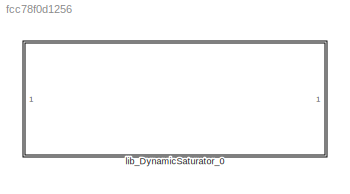
MODEL slx_fcc78f0d1256
KIND library
CONFIG AbsTol = auto
CONFIG EnableMultiTasking = off
CONFIG FixedStep = auto
CONFIG MaxStep = auto
CONFIG MinStep = auto
CONFIG RelTol = 1e-3
CONFIG SampleTimeConstraint = Unconstrained
CONFIG SolverName = VariableStepAuto
CONFIG StartTime = 0.0
CONFIG StopTime = 10.0
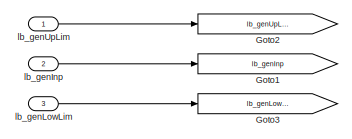
[diagram: lib_DynamicSaturator_0 - part 1/3, top left region]
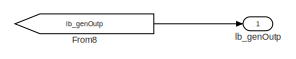
[diagram: lib_DynamicSaturator_0 - part 2/3, top right region]
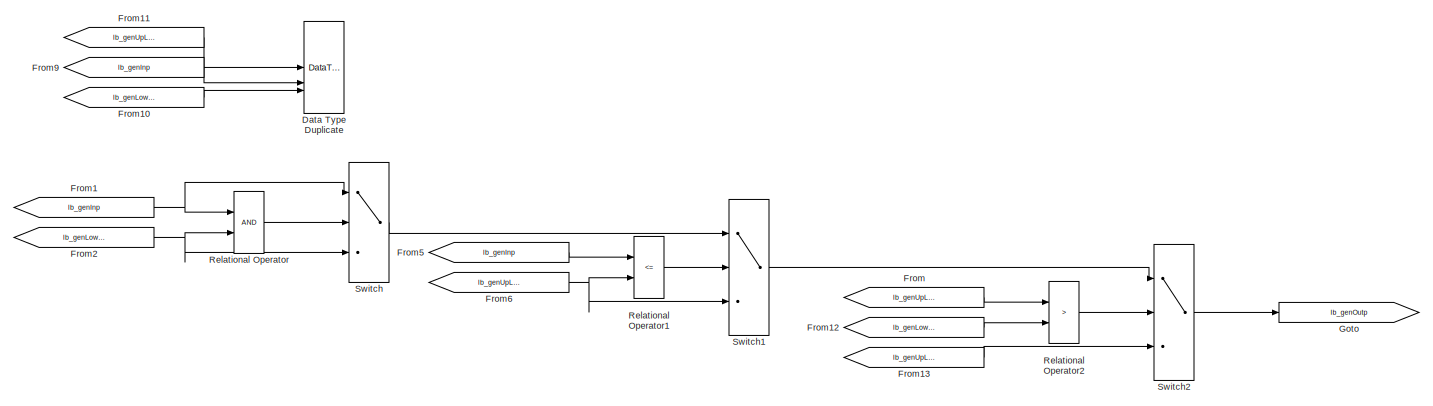
[diagram: lib_DynamicSaturator_0 - part 3/3, center side, full height]
BLOCK [SubSystem] lib_DynamicSaturator_0
BLOCK [DataTypeDuplicate] lib_DynamicSaturator_0/Data Type Duplicate
  NumInputPorts = 3
BLOCK [From] lib_DynamicSaturator_0/From
  GotoTag = lb_genUpLim
BLOCK [From] lib_DynamicSaturator_0/From1
  GotoTag = lb_genInp
BLOCK [From] lib_DynamicSaturator_0/From10
  GotoTag = lb_genLowLim
BLOCK [From] lib_DynamicSaturator_0/From11
  GotoTag = lb_genUpLim
BLOCK [From] lib_DynamicSaturator_0/From12
  GotoTag = lb_genLowLim
BLOCK [From] lib_DynamicSaturator_0/From13
  GotoTag = lb_genUpLim
BLOCK [From] lib_DynamicSaturator_0/From2
  GotoTag = lb_genLowLim
BLOCK [From] lib_DynamicSaturator_0/From5
  GotoTag = lb_genInp
BLOCK [From] lib_DynamicSaturator_0/From6
  GotoTag = lb_genUpLim
BLOCK [From] lib_DynamicSaturator_0/From8
  GotoTag = lb_genOutp
BLOCK [From] lib_DynamicSaturator_0/From9
  GotoTag = lb_genInp
BLOCK [Goto] lib_DynamicSaturator_0/Goto
  GotoTag = lb_genOutp
BLOCK [Goto] lib_DynamicSaturator_0/Goto1
  GotoTag = lb_genInp
BLOCK [Goto] lib_DynamicSaturator_0/Goto2
  GotoTag = lb_genUpLim
BLOCK [Goto] lib_DynamicSaturator_0/Goto3
  GotoTag = lb_genLowLim
BLOCK [RelationalOperator] lib_DynamicSaturator_0/Relational Operator
  InputSameDT = off
  OutDataTypeStr = boolean
  RndMeth = Simplest
BLOCK [RelationalOperator] lib_DynamicSaturator_0/Relational Operator1
  InputSameDT = off
  Operator = <=
  OutDataTypeStr = boolean
  RndMeth = Simplest
BLOCK [RelationalOperator] lib_DynamicSaturator_0/Relational Operator2
  InputSameDT = off
  Operator = >
  OutDataTypeStr = boolean
  RndMeth = Simplest
BLOCK [Switch] lib_DynamicSaturator_0/Switch
  Criteria = u2 ~= 0
  InputSameDT = off
  SaturateOnIntegerOverflow = off
BLOCK [Switch] lib_DynamicSaturator_0/Switch1
  Criteria = u2 ~= 0
  InputSameDT = off
  SaturateOnIntegerOverflow = off
BLOCK [Switch] lib_DynamicSaturator_0/Switch2
  Criteria = u2 ~= 0
  InputSameDT = off
  SaturateOnIntegerOverflow = off
BLOCK [Inport] lib_DynamicSaturator_0/lb_genInp
  Port = 2
BLOCK [Inport] lib_DynamicSaturator_0/lb_genLowLim
  Port = 3
BLOCK [Outport] lib_DynamicSaturator_0/lb_genOutp
BLOCK [Inport] lib_DynamicSaturator_0/lb_genUpLim
LINE lib_DynamicSaturator_0/From10:1 -> lib_DynamicSaturator_0/Data Type Duplicate:3
LINE lib_DynamicSaturator_0/From11:1 -> lib_DynamicSaturator_0/Data Type Duplicate:1
LINE lib_DynamicSaturator_0/From12:1 -> lib_DynamicSaturator_0/Relational Operator2:2
LINE lib_DynamicSaturator_0/From13:1 -> lib_DynamicSaturator_0/Switch2:3
NET lib_DynamicSaturator_0/From1:1 -> lib_DynamicSaturator_0/Relational Operator:1, lib_DynamicSaturator_0/Switch:1
NET lib_DynamicSaturator_0/From2:1 -> lib_DynamicSaturator_0/Relational Operator:2, lib_DynamicSaturator_0/Switch:3
LINE lib_DynamicSaturator_0/From5:1 -> lib_DynamicSaturator_0/Relational Operator1:1
NET lib_DynamicSaturator_0/From6:1 -> lib_DynamicSaturator_0/Relational Operator1:2, lib_DynamicSaturator_0/Switch1:3
LINE lib_DynamicSaturator_0/From8:1 -> lib_DynamicSaturator_0/lb_genOutp:1
LINE lib_DynamicSaturator_0/From9:1 -> lib_DynamicSaturator_0/Data Type Duplicate:2
LINE lib_DynamicSaturator_0/From:1 -> lib_DynamicSaturator_0/Relational Operator2:1
LINE lib_DynamicSaturator_0/Relational Operator1:1 -> lib_DynamicSaturator_0/Switch1:2
LINE lib_DynamicSaturator_0/Relational Operator2:1 -> lib_DynamicSaturator_0/Switch2:2
LINE lib_DynamicSaturator_0/Relational Operator:1 -> lib_DynamicSaturator_0/Switch:2
LINE lib_DynamicSaturator_0/Switch1:1 -> lib_DynamicSaturator_0/Switch2:1
LINE lib_DynamicSaturator_0/Switch2:1 -> lib_DynamicSaturator_0/Goto:1
LINE lib_DynamicSaturator_0/Switch:1 -> lib_DynamicSaturator_0/Switch1:1
LINE lib_DynamicSaturator_0/lb_genInp:1 -> lib_DynamicSaturator_0/Goto1:1
LINE lib_DynamicSaturator_0/lb_genLowLim:1 -> lib_DynamicSaturator_0/Goto3:1
LINE lib_DynamicSaturator_0/lb_genUpLim:1 -> lib_DynamicSaturator_0/Goto2:1
note: NET lines group one-source signal fan-out (src -> all destinations, sorted); 1:1 wires keep LINE
